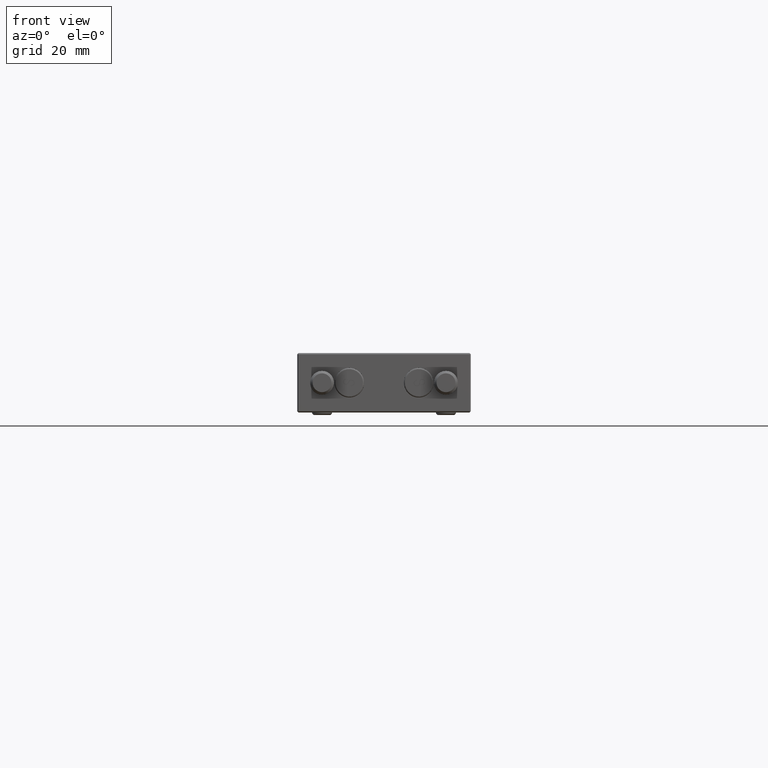
[diagram: clean part render]
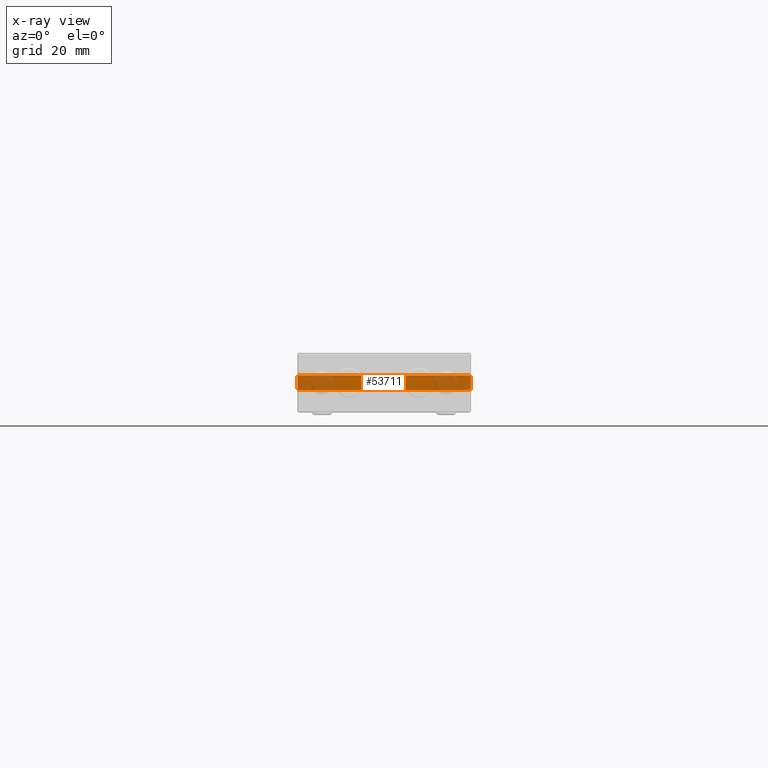
[diagram: x-ray — body ghosted, one internal face saturated and labeled with its STEP entity id]
A machine part, front view, then the same camera in x-ray: the body is ghosted and one INTERNAL B-rep face — a face not visible from any outside direction — is saturated and labeled: STEP entity #53711.
In plain terms, the highlighted planar face has unit normal (0, 1, 0).
Its self-contained STEP definition (entity closure, byte-faithful):
#4810 = VECTOR ( 'NONE', #52495, 1000.000000000000114 ) ;
#6627 = CARTESIAN_POINT ( 'NONE',  ( -17.49999999999999645, 15.00000000000000000, -5.000000000000000888 ) ) ;
#8133 = EDGE_CURVE ( 'NONE', #94042, #34358, #112675, .T. ) ;
#12438 = VERTEX_POINT ( 'NONE', #60066 ) ;
#12482 = VECTOR ( 'NONE', #45611, 999.9999999999998863 ) ;
#12549 = VECTOR ( 'NONE', #36201, 1000.000000000000000 ) ;
#14311 = LINE ( 'NONE', #106849, #4810 ) ;
#16593 = ORIENTED_EDGE ( 'NONE', *, *, #8133, .T. ) ;
#16750 = EDGE_LOOP ( 'NONE', ( #24620, #16593, #101349, #68528, #17841, #84440, #51812, #107196 ) ) ;
#17841 = ORIENTED_EDGE ( 'NONE', *, *, #98888, .T. ) ;
#18086 = CARTESIAN_POINT ( 'NONE',  ( -17.49999999999999645, 15.00000000000000000, -1.249999999999985123 ) ) ;
#18391 = CARTESIAN_POINT ( 'NONE',  ( 17.24999999999998934, 15.00000000000000000, -1.499999999999999112 ) ) ;
#19485 = CARTESIAN_POINT ( 'NONE',  ( -17.49999999999999645, 15.00000000000000000, -5.000000000000000888 ) ) ;
#19960 = EDGE_CURVE ( 'NONE', #33083, #95154, #36799, .T. ) ;
#22077 = CARTESIAN_POINT ( 'NONE',  ( -17.24999999999998579, 15.00000000000000000, -1.499999999999999112 ) ) ;
#22112 = VERTEX_POINT ( 'NONE', #89180 ) ;
#23360 = DIRECTION ( 'NONE',  ( 0.000000000000000000, -0.000000000000000000, 1.000000000000000000 ) ) ;
#24620 = ORIENTED_EDGE ( 'NONE', *, *, #58713, .T. ) ;
#25309 = AXIS2_PLACEMENT_3D ( 'NONE', #6627, #78296, #23360 ) ;
#25958 = CARTESIAN_POINT ( 'NONE',  ( -17.24999999999998579, 15.00000000000000000, 1.499999999999999112 ) ) ;
#27786 = CARTESIAN_POINT ( 'NONE',  ( 17.50000000000000355, 15.00000000000000000, -1.249999999999985123 ) ) ;
#29729 = EDGE_CURVE ( 'NONE', #34358, #111624, #14311, .T. ) ;
#30746 = LINE ( 'NONE', #63776, #38192 ) ;
#30868 = CARTESIAN_POINT ( 'NONE',  ( 0.000000000000000000, 15.00000000000000000, -1.499999999999999112 ) ) ;
#33083 = VERTEX_POINT ( 'NONE', #18086 ) ;
#33155 = CARTESIAN_POINT ( 'NONE',  ( 17.50000000000000355, 15.00000000000000000, 1.249999999999985567 ) ) ;
#34358 = VERTEX_POINT ( 'NONE', #18391 ) ;
#35158 = CARTESIAN_POINT ( 'NONE',  ( -17.49999999999999645, 15.00000000000000000, 1.249999999999985345 ) ) ;
#36201 = DIRECTION ( 'NONE',  ( -0.000000000000000000, -0.000000000000000000, 1.000000000000000000 ) ) ;
#36799 = LINE ( 'NONE', #19485, #107612 ) ;
#38192 = VECTOR ( 'NONE', #84498, 1000.000000000000000 ) ;
#45611 = DIRECTION ( 'NONE',  ( -0.7071067811865469066, 0.000000000000000000, -0.7071067811865482389 ) ) ;
#51812 = ORIENTED_EDGE ( 'NONE', *, *, #61541, .T. ) ;
#52495 = DIRECTION ( 'NONE',  ( 0.7071067811865474617, 0.000000000000000000, 0.7071067811865474617 ) ) ;
#53711 = ADVANCED_FACE ( 'NONE', ( #88445 ), #115332, .F. ) ;
#58713 = EDGE_CURVE ( 'NONE', #33083, #94042, #97417, .T. ) ;
#60066 = CARTESIAN_POINT ( 'NONE',  ( -17.24999999999998579, 15.00000000000000000, 1.499999999999999112 ) ) ;
#61541 = EDGE_CURVE ( 'NONE', #12438, #95154, #108349, .T. ) ;
#63776 = CARTESIAN_POINT ( 'NONE',  ( 0.000000000000000000, 15.00000000000000000, 1.499999999999999112 ) ) ;
#65069 = VECTOR ( 'NONE', #91192, 1000.000000000000114 ) ;
#66937 = VERTEX_POINT ( 'NONE', #33155 ) ;
#68528 = ORIENTED_EDGE ( 'NONE', *, *, #106848, .T. ) ;
#72666 = CARTESIAN_POINT ( 'NONE',  ( 17.24999999999998934, 15.00000000000000000, 1.499999999999999112 ) ) ;
#78296 = DIRECTION ( 'NONE',  ( -0.000000000000000000, 1.000000000000000000, 0.000000000000000000 ) ) ;
#84440 = ORIENTED_EDGE ( 'NONE', *, *, #117307, .T. ) ;
#84498 = DIRECTION ( 'NONE',  ( -1.000000000000000000, 0.000000000000000000, 0.000000000000000000 ) ) ;
#86677 = DIRECTION ( 'NONE',  ( 0.7071067811865474617, 0.000000000000000000, -0.7071067811865474617 ) ) ;
#88445 = FACE_OUTER_BOUND ( 'NONE', #16750, .T. ) ;
#89180 = CARTESIAN_POINT ( 'NONE',  ( 17.24999999999998934, 15.00000000000000000, 1.499999999999999112 ) ) ;
#90423 = VECTOR ( 'NONE', #106093, 1000.000000000000000 ) ;
#91192 = DIRECTION ( 'NONE',  ( -0.7071067811865481278, -0.000000000000000000, 0.7071067811865469066 ) ) ;
#92931 = DIRECTION ( 'NONE',  ( -0.000000000000000000, -0.000000000000000000, 1.000000000000000000 ) ) ;
#94042 = VERTEX_POINT ( 'NONE', #22077 ) ;
#95154 = VERTEX_POINT ( 'NONE', #35158 ) ;
#96405 = VECTOR ( 'NONE', #86677, 1000.000000000000114 ) ;
#97417 = LINE ( 'NONE', #116518, #96405 ) ;
#98888 = EDGE_CURVE ( 'NONE', #66937, #22112, #101342, .T. ) ;
#98927 = LINE ( 'NONE', #117437, #12549 ) ;
#101342 = LINE ( 'NONE', #72666, #65069 ) ;
#101349 = ORIENTED_EDGE ( 'NONE', *, *, #29729, .T. ) ;
#106093 = DIRECTION ( 'NONE',  ( 1.000000000000000000, 0.000000000000000000, 0.000000000000000000 ) ) ;
#106848 = EDGE_CURVE ( 'NONE', #111624, #66937, #98927, .T. ) ;
#106849 = CARTESIAN_POINT ( 'NONE',  ( 17.50000000000000355, 15.00000000000000000, -1.249999999999985123 ) ) ;
#107196 = ORIENTED_EDGE ( 'NONE', *, *, #19960, .F. ) ;
#107612 = VECTOR ( 'NONE', #92931, 1000.000000000000000 ) ;
#108349 = LINE ( 'NONE', #25958, #12482 ) ;
#111624 = VERTEX_POINT ( 'NONE', #27786 ) ;
#112675 = LINE ( 'NONE', #30868, #90423 ) ;
#115332 = PLANE ( 'NONE',  #25309 ) ;
#116518 = CARTESIAN_POINT ( 'NONE',  ( -17.49999999999999645, 15.00000000000000000, -1.249999999999985123 ) ) ;
#117307 = EDGE_CURVE ( 'NONE', #22112, #12438, #30746, .T. ) ;
#117437 = CARTESIAN_POINT ( 'NONE',  ( 17.50000000000000355, 15.00000000000000000, -5.000000000000000888 ) ) ;